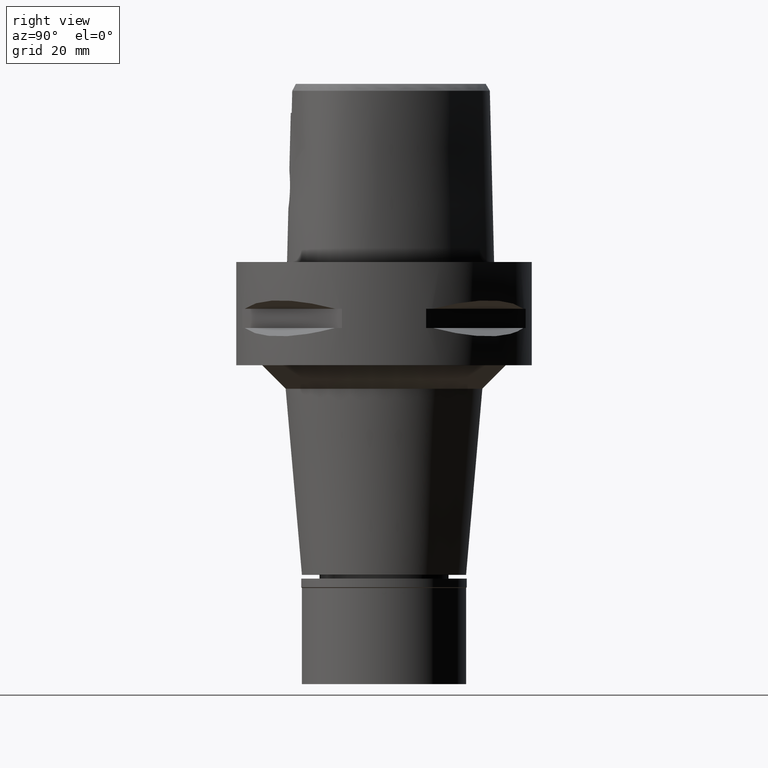
[diagram: clean part render]
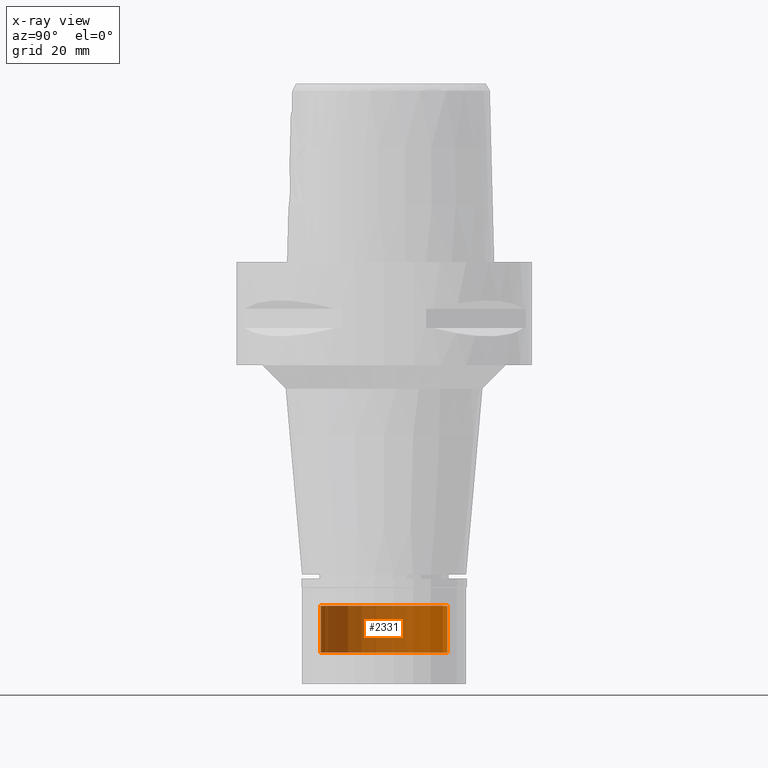
[diagram: x-ray — body ghosted, one internal face saturated and labeled with its STEP entity id]
A machine part, right view, then the same camera in x-ray: the body is ghosted and one INTERNAL B-rep face — a face not visible from any outside direction — is saturated and labeled: STEP entity #2331.
In plain terms, the highlighted cylindrical surface (partial cylindrical patch) has radius 13.5 mm, axis along (0, 0, -1).
Its self-contained STEP definition (entity closure, byte-faithful):
#151 = CYLINDRICAL_SURFACE ( 'NONE', #1714, 13.50000000000000000 ) ;
#420 = CARTESIAN_POINT ( 'NONE',  ( 0.0000000000000000000, 13.50000000000000000, -83.29999999999999716 ) ) ;
#514 = AXIS2_PLACEMENT_3D ( 'NONE', #4444, #2116, #4402 ) ;
#546 = EDGE_CURVE ( 'NONE', #4302, #1828, #2685, .T. ) ;
#744 = ORIENTED_EDGE ( 'NONE', *, *, #3124, .T. ) ;
#937 = CARTESIAN_POINT ( 'NONE',  ( 0.0000000000000000000, -13.50000000000000000, -73.29999999999999716 ) ) ;
#1233 = LINE ( 'NONE', #1659, #3495 ) ;
#1463 = AXIS2_PLACEMENT_3D ( 'NONE', #4436, #2184, #2961 ) ;
#1659 = CARTESIAN_POINT ( 'NONE',  ( 0.0000000000000000000, 13.50000000000000000, -73.29999999999999716 ) ) ;
#1675 = DIRECTION ( 'NONE',  ( 0.0000000000000000000, -1.000000000000000000, 0.0000000000000000000 ) ) ;
#1714 = AXIS2_PLACEMENT_3D ( 'NONE', #2360, #4662, #1675 ) ;
#1798 = VECTOR ( 'NONE', #2486, 1000.000000000000000 ) ;
#1828 = VERTEX_POINT ( 'NONE', #2717 ) ;
#1839 = EDGE_LOOP ( 'NONE', ( #3611, #4344, #3956, #744 ) ) ;
#1849 = CARTESIAN_POINT ( 'NONE',  ( 0.0000000000000000000, -13.50000000000000000, -83.29999999999999716 ) ) ;
#2024 = EDGE_CURVE ( 'NONE', #4302, #3528, #2078, .T. ) ;
#2030 = DIRECTION ( 'NONE',  ( 0.0000000000000000000, 0.0000000000000000000, -1.000000000000000000 ) ) ;
#2078 = LINE ( 'NONE', #937, #1798 ) ;
#2116 = DIRECTION ( 'NONE',  ( 0.0000000000000000000, 0.0000000000000000000, -1.000000000000000000 ) ) ;
#2184 = DIRECTION ( 'NONE',  ( 0.0000000000000000000, 0.0000000000000000000, 1.000000000000000000 ) ) ;
#2331 = ADVANCED_FACE ( 'NONE', ( #4357 ), #151, .T. ) ;
#2360 = CARTESIAN_POINT ( 'NONE',  ( 0.0000000000000000000, 1.275653338331999844E-14, 4.165000000000000036 ) ) ;
#2486 = DIRECTION ( 'NONE',  ( 0.0000000000000000000, 0.0000000000000000000, -1.000000000000000000 ) ) ;
#2685 = CIRCLE ( 'NONE', #514, 13.50000000000000000 ) ;
#2717 = CARTESIAN_POINT ( 'NONE',  ( 0.0000000000000000000, 13.50000000000000000, -73.29999999999999716 ) ) ;
#2961 = DIRECTION ( 'NONE',  ( 0.0000000000000000000, 1.000000000000000000, 0.0000000000000000000 ) ) ;
#3059 = CARTESIAN_POINT ( 'NONE',  ( 0.0000000000000000000, -13.50000000000000000, -73.29999999999999716 ) ) ;
#3124 = EDGE_CURVE ( 'NONE', #1828, #3523, #1233, .T. ) ;
#3342 = EDGE_CURVE ( 'NONE', #3523, #3528, #3970, .T. ) ;
#3495 = VECTOR ( 'NONE', #2030, 1000.000000000000000 ) ;
#3523 = VERTEX_POINT ( 'NONE', #420 ) ;
#3528 = VERTEX_POINT ( 'NONE', #1849 ) ;
#3611 = ORIENTED_EDGE ( 'NONE', *, *, #3342, .T. ) ;
#3956 = ORIENTED_EDGE ( 'NONE', *, *, #546, .T. ) ;
#3970 = CIRCLE ( 'NONE', #1463, 13.50000000000000000 ) ;
#4302 = VERTEX_POINT ( 'NONE', #3059 ) ;
#4344 = ORIENTED_EDGE ( 'NONE', *, *, #2024, .F. ) ;
#4357 = FACE_OUTER_BOUND ( 'NONE', #1839, .T. ) ;
#4402 = DIRECTION ( 'NONE',  ( 0.0000000000000000000, -1.000000000000000000, 0.0000000000000000000 ) ) ;
#4436 = CARTESIAN_POINT ( 'NONE',  ( 0.0000000000000000000, 1.275653338331999844E-14, -83.29999999999999716 ) ) ;
#4444 = CARTESIAN_POINT ( 'NONE',  ( 0.0000000000000000000, 1.275653338331999844E-14, -73.29999999999999716 ) ) ;
#4662 = DIRECTION ( 'NONE',  ( 0.0000000000000000000, 0.0000000000000000000, -1.000000000000000000 ) ) ;